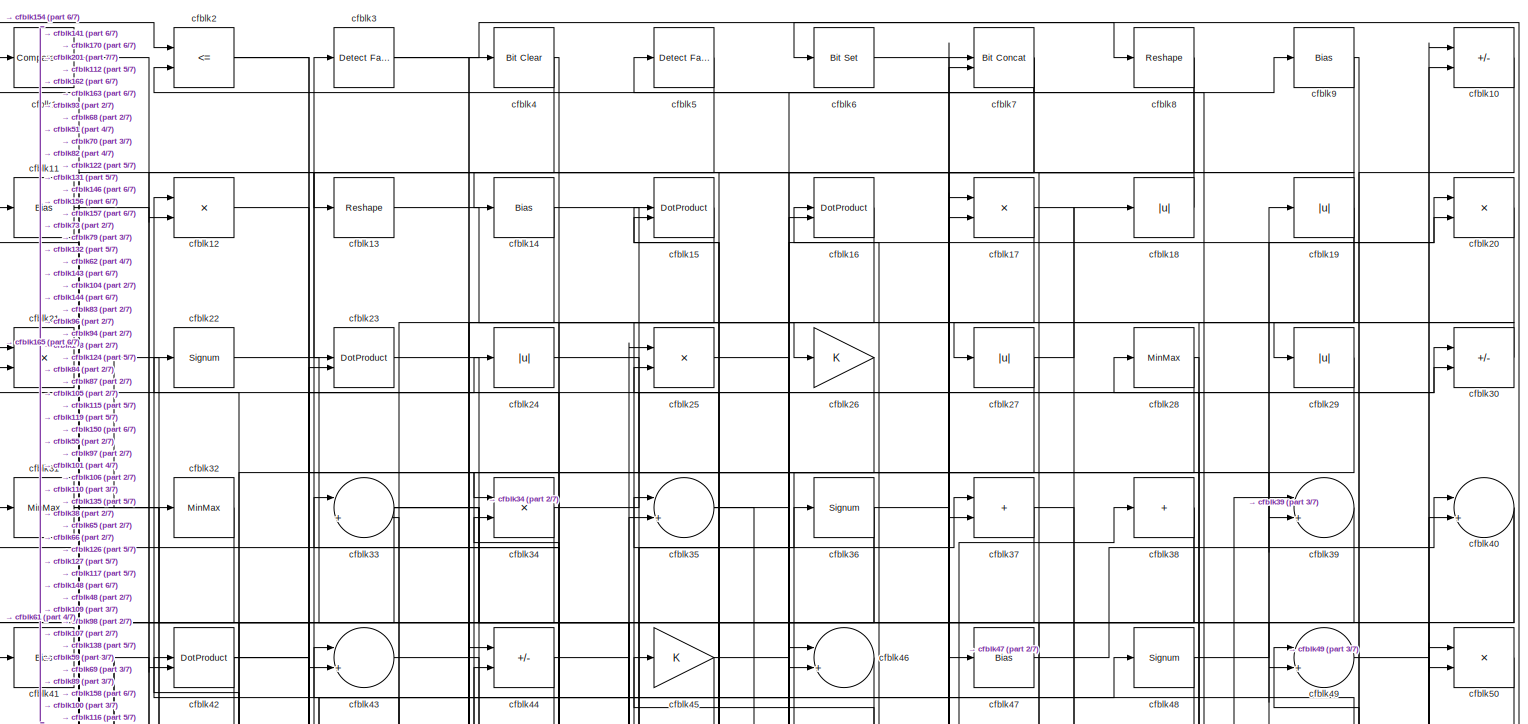
[diagram: root canvas - part 1/7, full width, top band]
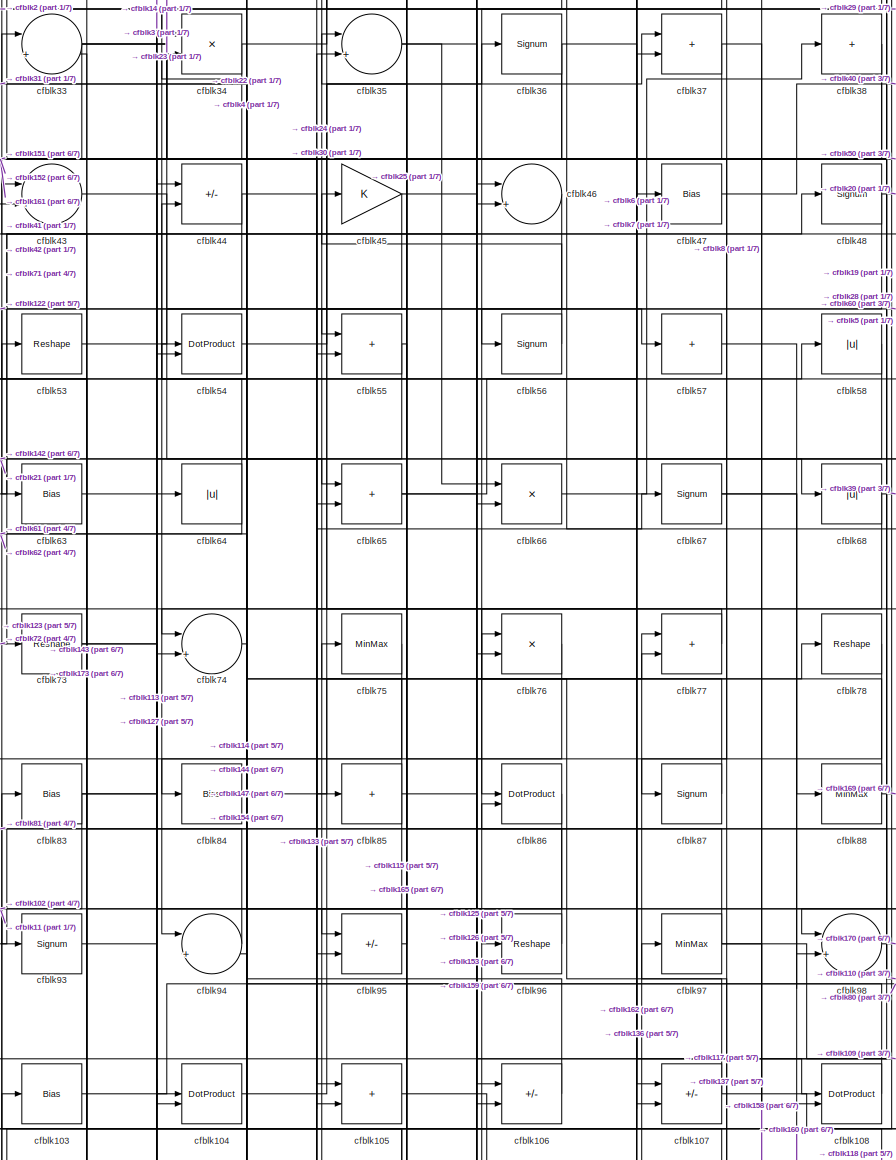
[diagram: root canvas - part 2/7, central region]
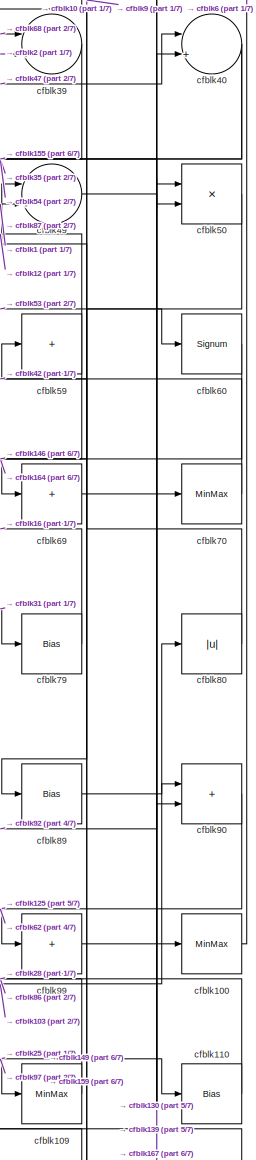
[diagram: root canvas - part 3/7, middle right region]
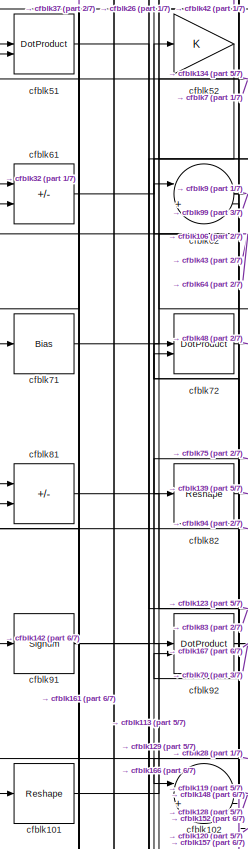
[diagram: root canvas - part 4/7, middle left region]
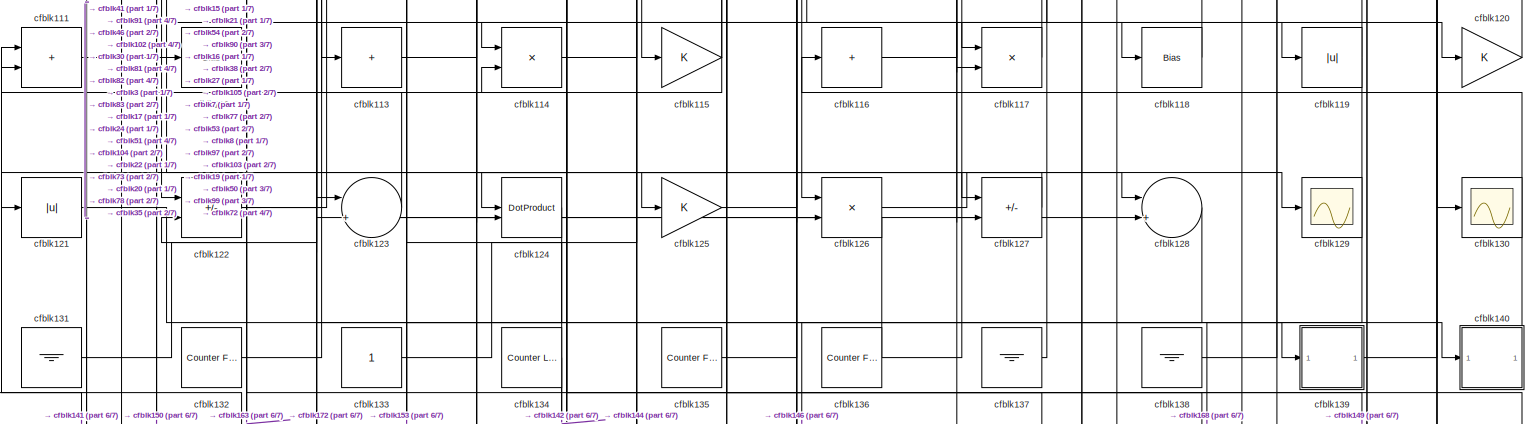
[diagram: root canvas - part 5/7, full width, middle band]
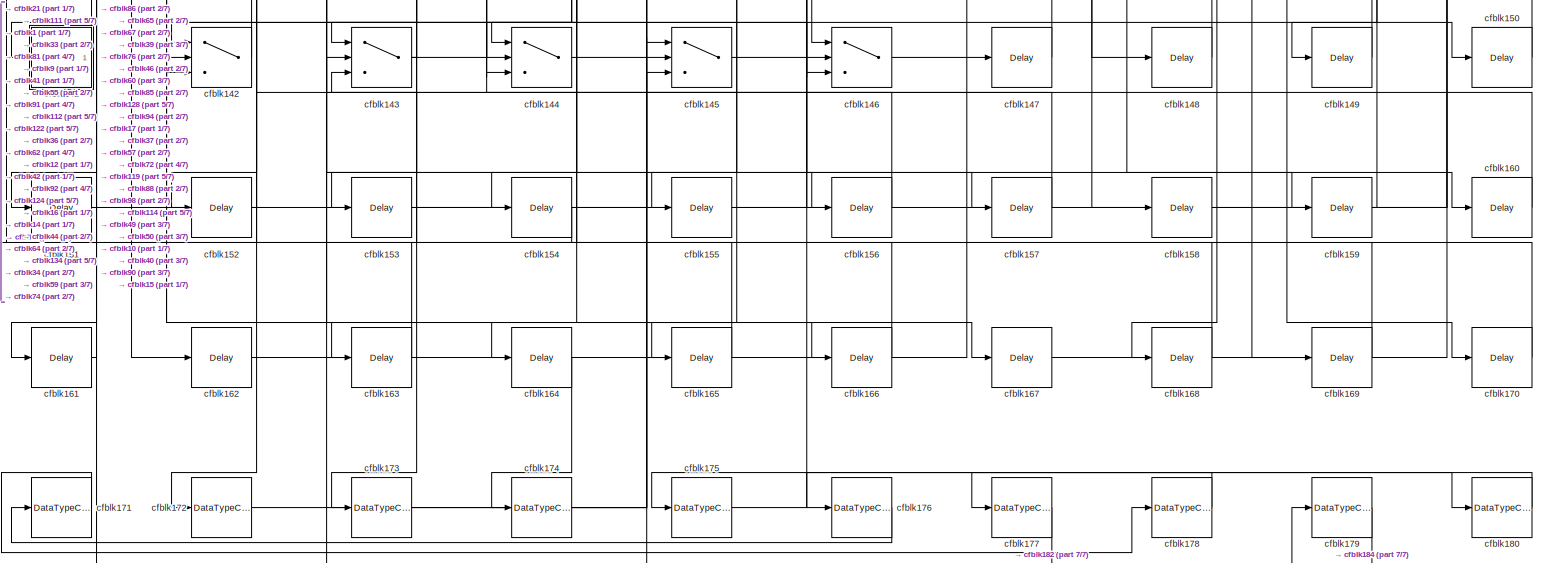
[diagram: root canvas - part 6/7, full width, bottom band]
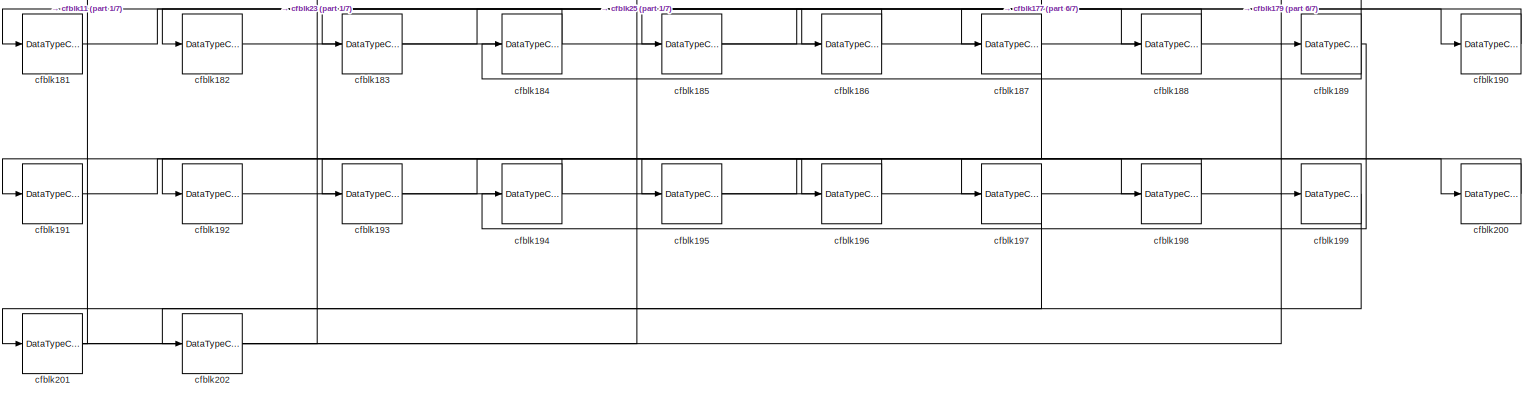
[diagram: root canvas - part 7/7, full width, bottom band]
MODEL slx_83c340fc67a4
KIND model
CONFIG AbsTol = auto
CONFIG EnableMultiTasking = off
CONFIG FixedStep = auto
CONFIG MaxStep = auto
CONFIG MinStep = auto
CONFIG RelTol = 1e-3
CONFIG SampleTimeConstraint = Unconstrained
CONFIG SolverName = VariableStepAuto
CONFIG StartTime = 0.0
CONFIG StopTime = 10.0
BLOCK [Reference] cfblk1  REF=hdlsllib/Logic and Bit
Operations/Compare
To Constant
  SourceBlock = hdlsllib/Logic and Bit\nOperations/Compare\nTo Constant
  SourceType = Compare To Constant
BLOCK [Sum] cfblk10
  IconShape = rectangular
  Inputs = +-
BLOCK [MinMax] cfblk100
BLOCK [Reshape] cfblk101
BLOCK [Sum] cfblk102
  Inputs = |++
BLOCK [Bias] cfblk103
  Bias = 0.0
  SaturateOnIntegerOverflow = off
BLOCK [DotProduct] cfblk104
  OutDataTypeStr = Inherit: Inherit via internal rule
BLOCK [Sum] cfblk105
  IconShape = rectangular
BLOCK [Sum] cfblk106
  IconShape = rectangular
  Inputs = +-
BLOCK [Sum] cfblk107
  IconShape = rectangular
  Inputs = +-
BLOCK [DotProduct] cfblk108
  OutDataTypeStr = Inherit: Inherit via internal rule
BLOCK [MinMax] cfblk109
BLOCK [Bias] cfblk11
  Bias = 0.0
  SaturateOnIntegerOverflow = off
BLOCK [Bias] cfblk110
  Bias = 0.0
  SaturateOnIntegerOverflow = off
BLOCK [Sum] cfblk111
  IconShape = rectangular
BLOCK [Bias] cfblk112
  Bias = 0.0
  SaturateOnIntegerOverflow = off
BLOCK [Sum] cfblk113
  IconShape = rectangular
  Inputs = +
BLOCK [Product] cfblk114
  Inputs = */
  RndMeth = Zero
  SaturateOnIntegerOverflow = on
BLOCK [Gain] cfblk115
BLOCK [Sum] cfblk116
  IconShape = rectangular
  Inputs = +
BLOCK [Product] cfblk117
  Inputs = */
  RndMeth = Zero
  SaturateOnIntegerOverflow = on
BLOCK [Bias] cfblk118
  Bias = 0.0
  SaturateOnIntegerOverflow = off
BLOCK [Abs] cfblk119
  SaturateOnIntegerOverflow = off
BLOCK [Product] cfblk12
  Inputs = */
  RndMeth = Zero
  SaturateOnIntegerOverflow = on
BLOCK [Gain] cfblk120
BLOCK [Abs] cfblk121
  SaturateOnIntegerOverflow = off
BLOCK [Sum] cfblk122
  IconShape = rectangular
  Inputs = +-
BLOCK [Sum] cfblk123
  Inputs = |++
BLOCK [DotProduct] cfblk124
  OutDataTypeStr = Inherit: Inherit via internal rule
BLOCK [Gain] cfblk125
BLOCK [Product] cfblk126
  Inputs = */
  RndMeth = Zero
  SaturateOnIntegerOverflow = on
BLOCK [Sum] cfblk127
  IconShape = rectangular
  Inputs = +-
BLOCK [Sum] cfblk128
  Inputs = |++
BLOCK [Scope] cfblk129
  Floating = off
  NumInputPorts = 1
  ScopeSpecificationString = Simulink.scopes.TimeScopeBlockCfg('CurrentConfiguration', extmgr.ConfigurationSet(extmgr.Configuration('Core','General UI',true),extmgr.Configuration('Core','Source UI',true),extmgr.Configuration('Sources','WiredSimulink',true,'DataLoggingVariableName','ScopeData2','DataLoggingSaveFormat','Array','DataLoggingLimitDataPoints',true,'DataLoggingDecimation','1'),extmgr.Configuration('Visuals','Time Do...<+868ch>
BLOCK [Reshape] cfblk13
BLOCK [Scope] cfblk130
  Floating = off
  NumInputPorts = 1
  ScopeSpecificationString = Simulink.scopes.TimeScopeBlockCfg('CurrentConfiguration', extmgr.ConfigurationSet(extmgr.Configuration('Core','General UI',true),extmgr.Configuration('Core','Source UI',true),extmgr.Configuration('Sources','WiredSimulink',true,'DataLoggingVariableName','ScopeData2','DataLoggingSaveFormat','Array','DataLoggingLimitDataPoints',true,'DataLoggingDecimation','1'),extmgr.Configuration('Visuals','Time Do...<+868ch>
BLOCK [Ground] cfblk131
BLOCK [Reference] cfblk132  REF=hdlsllib/Sources/Counter
Free-Running
  SourceBlock = hdlsllib/Sources/Counter\nFree-Running
  SourceType = Counter Free-Running
BLOCK [Constant] cfblk133
  SampleTime = -1
BLOCK [Reference] cfblk134  REF=hdlsllib/Sources/Counter
Limited
  SourceBlock = hdlsllib/Sources/Counter\nLimited
  SourceType = Counter Limited
BLOCK [Reference] cfblk135  REF=hdlsllib/Sources/Counter
Free-Running
  SourceBlock = hdlsllib/Sources/Counter\nFree-Running
  SourceType = Counter Free-Running
BLOCK [Reference] cfblk136  REF=hdlsllib/Sources/Counter
Free-Running
  SourceBlock = hdlsllib/Sources/Counter\nFree-Running
  SourceType = Counter Free-Running
BLOCK [Ground] cfblk137
BLOCK [Ground] cfblk138
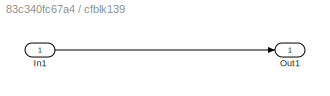
BLOCK [SubSystem] cfblk139
  LibrarySourceBlock = hdlsllib/Ports &\nSubsystems/Subsystem
BLOCK [Inport] cfblk139/In1
BLOCK [Outport] cfblk139/Out1
BLOCK [Bias] cfblk14
  Bias = 0.0
  SaturateOnIntegerOverflow = off
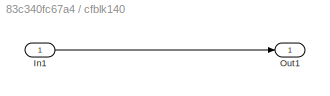
BLOCK [SubSystem] cfblk140
  LibrarySourceBlock = hdlsllib/Ports &\nSubsystems/Subsystem
BLOCK [Inport] cfblk140/In1
BLOCK [Outport] cfblk140/Out1
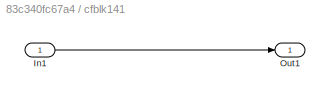
BLOCK [SubSystem] cfblk141
  LibrarySourceBlock = hdlsllib/Ports &\nSubsystems/Subsystem
BLOCK [Inport] cfblk141/In1
BLOCK [Outport] cfblk141/Out1
BLOCK [Switch] cfblk142
  InputSameDT = off
  SaturateOnIntegerOverflow = off
BLOCK [Switch] cfblk143
  InputSameDT = off
  SaturateOnIntegerOverflow = off
BLOCK [Switch] cfblk144
  InputSameDT = off
  SaturateOnIntegerOverflow = off
BLOCK [Switch] cfblk145
  InputSameDT = off
  SaturateOnIntegerOverflow = off
BLOCK [Switch] cfblk146
  InputSameDT = off
  SaturateOnIntegerOverflow = off
BLOCK [Delay] cfblk147
  InputPortMap = u0
  SampleTime = 1
BLOCK [Delay] cfblk148
  InputPortMap = u0
  SampleTime = 1
BLOCK [Delay] cfblk149
  InputPortMap = u0
  SampleTime = 1
BLOCK [DotProduct] cfblk15
  OutDataTypeStr = Inherit: Inherit via internal rule
BLOCK [Delay] cfblk150
  InputPortMap = u0
  SampleTime = 1
BLOCK [Delay] cfblk151
  InputPortMap = u0
  SampleTime = 1
BLOCK [Delay] cfblk152
  InputPortMap = u0
  SampleTime = 1
BLOCK [Delay] cfblk153
  InputPortMap = u0
  SampleTime = 1
BLOCK [Delay] cfblk154
  InputPortMap = u0
  SampleTime = 1
BLOCK [Delay] cfblk155
  InputPortMap = u0
  SampleTime = 1
BLOCK [Delay] cfblk156
  InputPortMap = u0
  SampleTime = 1
BLOCK [Delay] cfblk157
  InputPortMap = u0
  SampleTime = 1
BLOCK [Delay] cfblk158
  InputPortMap = u0
  SampleTime = 1
BLOCK [Delay] cfblk159
  InputPortMap = u0
  SampleTime = 1
BLOCK [DotProduct] cfblk16
  OutDataTypeStr = Inherit: Inherit via internal rule
BLOCK [Delay] cfblk160
  InputPortMap = u0
  SampleTime = 1
BLOCK [Delay] cfblk161
  InputPortMap = u0
  SampleTime = 1
BLOCK [Delay] cfblk162
  InputPortMap = u0
  SampleTime = 1
BLOCK [Delay] cfblk163
  InputPortMap = u0
  SampleTime = 1
BLOCK [Delay] cfblk164
  InputPortMap = u0
  SampleTime = 1
BLOCK [Delay] cfblk165
  InputPortMap = u0
  SampleTime = 1
BLOCK [Delay] cfblk166
  InputPortMap = u0
  SampleTime = 1
BLOCK [Delay] cfblk167
  InputPortMap = u0
  SampleTime = 1
BLOCK [Delay] cfblk168
  InputPortMap = u0
  SampleTime = 1
BLOCK [Delay] cfblk169
  InputPortMap = u0
  SampleTime = 1
BLOCK [Product] cfblk17
  Inputs = */
  RndMeth = Zero
  SaturateOnIntegerOverflow = on
BLOCK [Delay] cfblk170
  InputPortMap = u0
  SampleTime = 1
BLOCK [DataTypeConversion] cfblk171
  RndMeth = Floor
  SaturateOnIntegerOverflow = off
BLOCK [DataTypeConversion] cfblk172
  OutDataTypeStr = uint8
  RndMeth = Floor
  SaturateOnIntegerOverflow = off
BLOCK [DataTypeConversion] cfblk173
  OutDataTypeStr = uint8
  RndMeth = Floor
  SaturateOnIntegerOverflow = off
BLOCK [DataTypeConversion] cfblk174
  OutDataTypeStr = uint8
  RndMeth = Floor
  SaturateOnIntegerOverflow = off
BLOCK [DataTypeConversion] cfblk175
  RndMeth = Floor
  SaturateOnIntegerOverflow = off
BLOCK [DataTypeConversion] cfblk176
  OutDataTypeStr = uint8
  RndMeth = Floor
  SaturateOnIntegerOverflow = off
BLOCK [DataTypeConversion] cfblk177
  RndMeth = Floor
  SaturateOnIntegerOverflow = off
BLOCK [DataTypeConversion] cfblk178
  OutDataTypeStr = uint8
  RndMeth = Floor
  SaturateOnIntegerOverflow = off
BLOCK [DataTypeConversion] cfblk179
  RndMeth = Floor
  SaturateOnIntegerOverflow = off
BLOCK [Abs] cfblk18
  SaturateOnIntegerOverflow = off
BLOCK [DataTypeConversion] cfblk180
  OutDataTypeStr = uint8
  RndMeth = Floor
  SaturateOnIntegerOverflow = off
BLOCK [DataTypeConversion] cfblk181
  RndMeth = Floor
  SaturateOnIntegerOverflow = off
BLOCK [DataTypeConversion] cfblk182
  OutDataTypeStr = uint8
  RndMeth = Floor
  SaturateOnIntegerOverflow = off
BLOCK [DataTypeConversion] cfblk183
  RndMeth = Floor
  SaturateOnIntegerOverflow = off
BLOCK [DataTypeConversion] cfblk184
  OutDataTypeStr = uint8
  RndMeth = Floor
  SaturateOnIntegerOverflow = off
BLOCK [DataTypeConversion] cfblk185
  RndMeth = Floor
  SaturateOnIntegerOverflow = off
BLOCK [DataTypeConversion] cfblk186
  OutDataTypeStr = uint8
  RndMeth = Floor
  SaturateOnIntegerOverflow = off
BLOCK [DataTypeConversion] cfblk187
  RndMeth = Floor
  SaturateOnIntegerOverflow = off
BLOCK [DataTypeConversion] cfblk188
  OutDataTypeStr = uint8
  RndMeth = Floor
  SaturateOnIntegerOverflow = off
BLOCK [DataTypeConversion] cfblk189
  RndMeth = Floor
  SaturateOnIntegerOverflow = off
BLOCK [Abs] cfblk19
  SaturateOnIntegerOverflow = off
BLOCK [DataTypeConversion] cfblk190
  OutDataTypeStr = uint8
  RndMeth = Floor
  SaturateOnIntegerOverflow = off
BLOCK [DataTypeConversion] cfblk191
  RndMeth = Floor
  SaturateOnIntegerOverflow = off
BLOCK [DataTypeConversion] cfblk192
  OutDataTypeStr = uint8
  RndMeth = Floor
  SaturateOnIntegerOverflow = off
BLOCK [DataTypeConversion] cfblk193
  RndMeth = Floor
  SaturateOnIntegerOverflow = off
BLOCK [DataTypeConversion] cfblk194
  OutDataTypeStr = uint8
  RndMeth = Floor
  SaturateOnIntegerOverflow = off
BLOCK [DataTypeConversion] cfblk195
  RndMeth = Floor
  SaturateOnIntegerOverflow = off
BLOCK [DataTypeConversion] cfblk196
  OutDataTypeStr = uint8
  RndMeth = Floor
  SaturateOnIntegerOverflow = off
BLOCK [DataTypeConversion] cfblk197
  RndMeth = Floor
  SaturateOnIntegerOverflow = off
BLOCK [DataTypeConversion] cfblk198
  OutDataTypeStr = uint8
  RndMeth = Floor
  SaturateOnIntegerOverflow = off
BLOCK [DataTypeConversion] cfblk199
  RndMeth = Floor
  SaturateOnIntegerOverflow = off
BLOCK [RelationalOperator] cfblk2
  InputSameDT = off
  Operator = <=
  OutDataTypeStr = boolean
BLOCK [Product] cfblk20
  Inputs = */
  RndMeth = Zero
  SaturateOnIntegerOverflow = on
BLOCK [DataTypeConversion] cfblk200
  OutDataTypeStr = uint8
  RndMeth = Floor
  SaturateOnIntegerOverflow = off
BLOCK [DataTypeConversion] cfblk201
  RndMeth = Floor
  SaturateOnIntegerOverflow = off
BLOCK [DataTypeConversion] cfblk202
  OutDataTypeStr = uint8
  RndMeth = Floor
  SaturateOnIntegerOverflow = off
BLOCK [Product] cfblk21
  Inputs = */
  RndMeth = Zero
  SaturateOnIntegerOverflow = on
BLOCK [Signum] cfblk22
BLOCK [DotProduct] cfblk23
  OutDataTypeStr = Inherit: Inherit via internal rule
BLOCK [Abs] cfblk24
  SaturateOnIntegerOverflow = off
BLOCK [Product] cfblk25
  Inputs = */
  RndMeth = Zero
  SaturateOnIntegerOverflow = on
BLOCK [Gain] cfblk26
BLOCK [Abs] cfblk27
  SaturateOnIntegerOverflow = off
BLOCK [MinMax] cfblk28
BLOCK [Abs] cfblk29
  SaturateOnIntegerOverflow = off
BLOCK [Reference] cfblk3  REF=hdlsllib/Logic and Bit
Operations/Detect Fall
Nonpositive
  SourceBlock = hdlsllib/Logic and Bit\nOperations/Detect Fall\nNonpositive
  SourceType = Detect Fall Nonpositive
BLOCK [Sum] cfblk30
  IconShape = rectangular
  Inputs = +-
BLOCK [MinMax] cfblk31
BLOCK [MinMax] cfblk32
BLOCK [Sum] cfblk33
  Inputs = |++
BLOCK [Product] cfblk34
  Inputs = */
  RndMeth = Zero
  SaturateOnIntegerOverflow = on
BLOCK [Sum] cfblk35
  Inputs = |++
BLOCK [Signum] cfblk36
BLOCK [Sum] cfblk37
  IconShape = rectangular
BLOCK [Sum] cfblk38
  IconShape = rectangular
  Inputs = +
BLOCK [Sum] cfblk39
  Inputs = |++
BLOCK [Reference] cfblk4  REF=simulink/Logic and Bit
Operations/Bit Clear
  LibrarySourceBlock = hdlsllib/Logic and Bit\nOperations/Bit Clear
  SourceBlock = simulink/Logic and Bit\nOperations/Bit Clear
  SourceType = Bit Clear
BLOCK [Sum] cfblk40
  Inputs = |++
BLOCK [Bias] cfblk41
  Bias = 0.0
  SaturateOnIntegerOverflow = off
BLOCK [DotProduct] cfblk42
  OutDataTypeStr = Inherit: Inherit via internal rule
BLOCK [Sum] cfblk43
  Inputs = |++
BLOCK [Sum] cfblk44
  IconShape = rectangular
  Inputs = +-
BLOCK [Gain] cfblk45
BLOCK [Sum] cfblk46
  Inputs = |++
BLOCK [Bias] cfblk47
  Bias = 0.0
  SaturateOnIntegerOverflow = off
BLOCK [Signum] cfblk48
BLOCK [Sum] cfblk49
  Inputs = |++
BLOCK [Reference] cfblk5  REF=hdlsllib/Logic and Bit
Operations/Detect Fall
Negative
  SourceBlock = hdlsllib/Logic and Bit\nOperations/Detect Fall\nNegative
  SourceType = Detect Fall Negative
BLOCK [Product] cfblk50
  Inputs = */
  RndMeth = Zero
  SaturateOnIntegerOverflow = on
BLOCK [DotProduct] cfblk51
  OutDataTypeStr = Inherit: Inherit via internal rule
BLOCK [Gain] cfblk52
BLOCK [Reshape] cfblk53
BLOCK [DotProduct] cfblk54
  OutDataTypeStr = Inherit: Inherit via internal rule
BLOCK [Sum] cfblk55
  IconShape = rectangular
BLOCK [Signum] cfblk56
BLOCK [Sum] cfblk57
  IconShape = rectangular
  Inputs = +
BLOCK [Abs] cfblk58
  SaturateOnIntegerOverflow = off
BLOCK [Sum] cfblk59
  IconShape = rectangular
  Inputs = +
BLOCK [Reference] cfblk6  REF=simulink/Logic and Bit
Operations/Bit Set
  LibrarySourceBlock = hdlsllib/Logic and Bit\nOperations/Bit Set
  SourceBlock = simulink/Logic and Bit\nOperations/Bit Set
  SourceType = Bit Set
BLOCK [Signum] cfblk60
BLOCK [Sum] cfblk61
  IconShape = rectangular
  Inputs = +-
BLOCK [Sum] cfblk62
  Inputs = |++
BLOCK [Bias] cfblk63
  Bias = 0.0
  SaturateOnIntegerOverflow = off
BLOCK [Abs] cfblk64
  SaturateOnIntegerOverflow = off
BLOCK [Sum] cfblk65
  IconShape = rectangular
BLOCK [Product] cfblk66
  Inputs = */
  RndMeth = Zero
  SaturateOnIntegerOverflow = on
BLOCK [Signum] cfblk67
BLOCK [Abs] cfblk68
  SaturateOnIntegerOverflow = off
BLOCK [Sum] cfblk69
  IconShape = rectangular
  Inputs = +
BLOCK [Reference] cfblk7  REF=hdlsllib/Logic and Bit
Operations/Bit Concat
  SourceBlock = hdlsllib/Logic and Bit\nOperations/Bit Concat
  SourceType = Bit Concat
BLOCK [MinMax] cfblk70
BLOCK [Bias] cfblk71
  Bias = 0.0
  SaturateOnIntegerOverflow = off
BLOCK [DotProduct] cfblk72
  OutDataTypeStr = Inherit: Inherit via internal rule
BLOCK [Reshape] cfblk73
BLOCK [Sum] cfblk74
  Inputs = |++
BLOCK [MinMax] cfblk75
BLOCK [Product] cfblk76
  Inputs = */
  RndMeth = Zero
  SaturateOnIntegerOverflow = on
BLOCK [Sum] cfblk77
  IconShape = rectangular
BLOCK [Reshape] cfblk78
BLOCK [Bias] cfblk79
  Bias = 0.0
  SaturateOnIntegerOverflow = off
BLOCK [Reshape] cfblk8
BLOCK [Abs] cfblk80
  SaturateOnIntegerOverflow = off
BLOCK [Sum] cfblk81
  IconShape = rectangular
  Inputs = +-
BLOCK [Reshape] cfblk82
BLOCK [Bias] cfblk83
  Bias = 0.0
  SaturateOnIntegerOverflow = off
BLOCK [Bias] cfblk84
  Bias = 0.0
  SaturateOnIntegerOverflow = off
BLOCK [Sum] cfblk85
  IconShape = rectangular
  Inputs = +
BLOCK [DotProduct] cfblk86
  OutDataTypeStr = Inherit: Inherit via internal rule
BLOCK [Signum] cfblk87
BLOCK [MinMax] cfblk88
BLOCK [Bias] cfblk89
  Bias = 0.0
  SaturateOnIntegerOverflow = off
BLOCK [Bias] cfblk9
  Bias = 0.0
  SaturateOnIntegerOverflow = off
BLOCK [Sum] cfblk90
  IconShape = rectangular
BLOCK [Signum] cfblk91
BLOCK [DotProduct] cfblk92
  OutDataTypeStr = Inherit: Inherit via internal rule
BLOCK [Signum] cfblk93
BLOCK [Sum] cfblk94
  Inputs = |++
BLOCK [Sum] cfblk95
  IconShape = rectangular
  Inputs = +-
BLOCK [Reshape] cfblk96
BLOCK [MinMax] cfblk97
BLOCK [Sum] cfblk98
  Inputs = |++
BLOCK [Sum] cfblk99
  IconShape = rectangular
  Inputs = +
LINE cfblk100:1 -> cfblk6:1
LINE cfblk101:1 -> cfblk7:1
NET cfblk102:1 -> cfblk119:1, cfblk128:2
LINE cfblk103:1 -> cfblk80:1
LINE cfblk104:1 -> cfblk37:1
LINE cfblk105:1 -> cfblk118:1
LINE cfblk106:1 -> cfblk62:1
NET cfblk107:1 -> cfblk5:1, cfblk76:1
LINE cfblk108:1 -> cfblk22:1
LINE cfblk109:1 -> cfblk28:1
LINE cfblk10:1 -> cfblk89:1
LINE cfblk110:1 -> cfblk86:2
LINE cfblk111:1 -> cfblk150:1
LINE cfblk112:1 -> cfblk172:1
LINE cfblk113:1 -> cfblk104:1
LINE cfblk114:1 -> cfblk120:1
NET cfblk115:1 -> cfblk111:2, cfblk21:2, cfblk54:1
LINE cfblk116:1 -> cfblk17:2
LINE cfblk117:1 -> cfblk53:1
LINE cfblk118:1 -> cfblk103:1
NET cfblk119:1 -> cfblk15:1, cfblk168:1
LINE cfblk11:1 -> cfblk93:1
LINE cfblk120:1 -> cfblk72:1
LINE cfblk121:1 -> cfblk140:1
NET cfblk122:1 -> cfblk17:1, cfblk24:1
LINE cfblk123:1 -> cfblk83:1
LINE cfblk124:1 -> cfblk153:1
LINE cfblk125:1 -> cfblk77:2
LINE cfblk126:1 -> cfblk128:1
LINE cfblk127:1 -> cfblk121:1
LINE cfblk128:1 -> cfblk146:1
LINE cfblk12:1 -> cfblk146:3
LINE cfblk131:1 -> cfblk30:2
LINE cfblk132:1 -> cfblk3:1
LINE cfblk133:1 -> cfblk35:2
NET cfblk134:1 -> cfblk142:1, cfblk144:2, cfblk51:1
LINE cfblk135:1 -> cfblk16:2
NET cfblk136:1 -> cfblk123:2, cfblk77:1
LINE cfblk137:1 -> cfblk97:1
LINE cfblk138:1 -> cfblk19:1
LINE cfblk139/In1:1 -> cfblk139/Out1:1
LINE cfblk139:1 -> cfblk50:1
LINE cfblk13:1 -> cfblk26:1
LINE cfblk140/In1:1 -> cfblk140/Out1:1
LINE cfblk140:1 -> cfblk116:1
LINE cfblk141/In1:1 -> cfblk141/Out1:1
LINE cfblk141:1 -> cfblk111:1
LINE cfblk142:1 -> cfblk91:1
NET cfblk143:1 -> cfblk33:2, cfblk64:1
LINE cfblk144:1 -> cfblk67:1
LINE cfblk145:1 -> cfblk176:1
LINE cfblk146:1 -> cfblk147:1
LINE cfblk147:1 -> cfblk94:2
LINE cfblk148:1 -> cfblk72:2
LINE cfblk149:1 -> cfblk114:2
NET cfblk14:1 -> cfblk107:1, cfblk144:3
LINE cfblk150:1 -> cfblk15:2
LINE cfblk151:1 -> cfblk65:2
LINE cfblk152:1 -> cfblk62:2
LINE cfblk153:1 -> cfblk46:1
LINE cfblk154:1 -> cfblk2:1
LINE cfblk155:1 -> cfblk90:2
LINE cfblk156:1 -> cfblk143:2
LINE cfblk157:1 -> cfblk92:2
LINE cfblk158:1 -> cfblk10:1
LINE cfblk159:1 -> cfblk49:1
LINE cfblk15:1 -> cfblk115:1
LINE cfblk160:1 -> cfblk44:1
LINE cfblk161:1 -> cfblk81:2
LINE cfblk162:1 -> cfblk37:2
LINE cfblk163:1 -> cfblk122:2
LINE cfblk164:1 -> cfblk174:1
LINE cfblk165:1 -> cfblk21:1
LINE cfblk166:1 -> cfblk142:2
LINE cfblk167:1 -> cfblk40:2
LINE cfblk168:1 -> cfblk143:3
LINE cfblk169:1 -> cfblk34:2
LINE cfblk16:1 -> cfblk143:1
LINE cfblk170:1 -> cfblk1:1
LINE cfblk171:1 -> cfblk178:1
LINE cfblk172:1 -> cfblk145:1
LINE cfblk173:1 -> cfblk145:2
LINE cfblk174:1 -> cfblk145:3
LINE cfblk175:1 -> cfblk180:1
LINE cfblk176:1 -> cfblk171:1
LINE cfblk177:1 -> cfblk182:1
LINE cfblk178:1 -> cfblk175:1
LINE cfblk179:1 -> cfblk184:1
NET cfblk17:1 -> cfblk148:1, cfblk27:1
LINE cfblk180:1 -> cfblk177:1
LINE cfblk181:1 -> cfblk186:1
LINE cfblk182:1 -> cfblk179:1
LINE cfblk183:1 -> cfblk188:1
LINE cfblk184:1 -> cfblk181:1
LINE cfblk185:1 -> cfblk190:1
LINE cfblk186:1 -> cfblk183:1
LINE cfblk187:1 -> cfblk192:1
LINE cfblk188:1 -> cfblk185:1
LINE cfblk189:1 -> cfblk194:1
LINE cfblk18:1 -> cfblk13:1
LINE cfblk190:1 -> cfblk187:1
LINE cfblk191:1 -> cfblk196:1
LINE cfblk192:1 -> cfblk189:1
LINE cfblk193:1 -> cfblk198:1
LINE cfblk194:1 -> cfblk191:1
LINE cfblk195:1 -> cfblk200:1
LINE cfblk196:1 -> cfblk193:1
LINE cfblk197:1 -> cfblk202:1
LINE cfblk198:1 -> cfblk195:1
LINE cfblk199:1 -> cfblk201:1
NET cfblk19:1 -> cfblk104:2, cfblk14:1, cfblk98:1
LINE cfblk1:1 -> cfblk49:2
LINE cfblk200:1 -> cfblk197:1
NET cfblk201:1 -> cfblk11:1, cfblk23:2, cfblk25:1
LINE cfblk202:1 -> cfblk199:1
LINE cfblk20:1 -> cfblk124:1
NET cfblk21:1 -> cfblk32:1, cfblk68:1
LINE cfblk22:1 -> cfblk124:2
LINE cfblk23:1 -> cfblk105:1
LINE cfblk24:1 -> cfblk106:1
LINE cfblk25:1 -> cfblk110:1
LINE cfblk26:1 -> cfblk82:1
NET cfblk27:1 -> cfblk126:1, cfblk18:1
NET cfblk28:1 -> cfblk101:1, cfblk106:2
LINE cfblk29:1 -> cfblk94:1
NET cfblk2:1 -> cfblk34:1, cfblk39:2
LINE cfblk30:1 -> cfblk29:1
NET cfblk31:1 -> cfblk73:1, cfblk79:1
LINE cfblk32:1 -> cfblk61:1
NET cfblk33:1 -> cfblk161:1, cfblk55:2, cfblk57:1, cfblk95:2
NET cfblk34:1 -> cfblk30:1, cfblk42:2
NET cfblk35:1 -> cfblk50:2, cfblk66:1
NET cfblk36:1 -> cfblk108:1, cfblk151:1, cfblk152:1
NET cfblk37:1 -> cfblk158:1, cfblk71:1
NET cfblk38:1 -> cfblk126:2, cfblk41:1
LINE cfblk39:1 -> cfblk155:1
NET cfblk3:1 -> cfblk8:1, cfblk96:1
NET cfblk40:1 -> cfblk54:2, cfblk87:1
NET cfblk41:1 -> cfblk112:1, cfblk162:1, cfblk163:1
NET cfblk42:1 -> cfblk156:1, cfblk157:1, cfblk51:2
LINE cfblk43:1 -> cfblk85:1
NET cfblk44:1 -> cfblk63:1, cfblk76:2
NET cfblk45:1 -> cfblk105:2, cfblk46:2
LINE cfblk46:1 -> cfblk122:1
LINE cfblk47:1 -> cfblk40:1
NET cfblk48:1 -> cfblk20:1, cfblk56:1
LINE cfblk49:1 -> cfblk100:1
NET cfblk4:1 -> cfblk12:2, cfblk84:1
LINE cfblk50:1 -> cfblk149:1
LINE cfblk51:1 -> cfblk113:1
LINE cfblk52:1 -> cfblk92:1
LINE cfblk53:1 -> cfblk60:1
LINE cfblk54:1 -> cfblk36:1
NET cfblk55:1 -> cfblk142:3, cfblk95:1
LINE cfblk56:1 -> cfblk45:1
LINE cfblk57:1 -> cfblk160:1
LINE cfblk58:1 -> cfblk107:2
NET cfblk59:1 -> cfblk12:1, cfblk164:1
LINE cfblk5:1 -> cfblk23:1
LINE cfblk60:1 -> cfblk146:2
LINE cfblk61:1 -> cfblk52:1
NET cfblk62:1 -> cfblk99:1, cfblk9:1
LINE cfblk63:1 -> cfblk65:1
NET cfblk64:1 -> cfblk44:2, cfblk61:2
NET cfblk65:1 -> cfblk20:2, cfblk7:2
LINE cfblk66:1 -> cfblk38:1
NET cfblk67:1 -> cfblk88:1, cfblk98:2
NET cfblk68:1 -> cfblk39:1, cfblk86:1
LINE cfblk69:1 -> cfblk10:2
LINE cfblk6:1 -> cfblk47:1
LINE cfblk70:1 -> cfblk42:1
LINE cfblk71:1 -> cfblk43:2
LINE cfblk72:1 -> cfblk48:1
NET cfblk73:1 -> cfblk117:2, cfblk127:1
LINE cfblk74:1 -> cfblk144:1
LINE cfblk75:1 -> cfblk102:1
LINE cfblk76:1 -> cfblk165:1
LINE cfblk77:1 -> cfblk74:1
LINE cfblk78:1 -> cfblk114:1
LINE cfblk79:1 -> cfblk16:1
NET cfblk7:1 -> cfblk127:2, cfblk2:2, cfblk66:2
LINE cfblk80:1 -> cfblk59:1
LINE cfblk81:1 -> cfblk123:1
LINE cfblk82:1 -> cfblk139:1
NET cfblk83:1 -> cfblk102:2, cfblk4:1, cfblk74:2
LINE cfblk84:1 -> cfblk78:1
NET cfblk85:1 -> cfblk159:1, cfblk173:1, cfblk33:1
LINE cfblk86:1 -> cfblk154:1
LINE cfblk87:1 -> cfblk31:1
NET cfblk88:1 -> cfblk169:1, cfblk75:1
LINE cfblk89:1 -> cfblk90:1
NET cfblk8:1 -> cfblk117:1, cfblk55:1
LINE cfblk90:1 -> cfblk125:1
NET cfblk91:1 -> cfblk129:1, cfblk166:1
NET cfblk92:1 -> cfblk167:1, cfblk70:1
LINE cfblk93:1 -> cfblk58:1
LINE cfblk94:1 -> cfblk81:1
LINE cfblk95:1 -> cfblk35:1
LINE cfblk96:1 -> cfblk43:1
NET cfblk97:1 -> cfblk108:2, cfblk109:1, cfblk25:2
LINE cfblk98:1 -> cfblk170:1
LINE cfblk99:1 -> cfblk130:1
NET cfblk9:1 -> cfblk141:1, cfblk69:1
note: NET lines group one-source signal fan-out (src -> all destinations, sorted); 1:1 wires keep LINE
